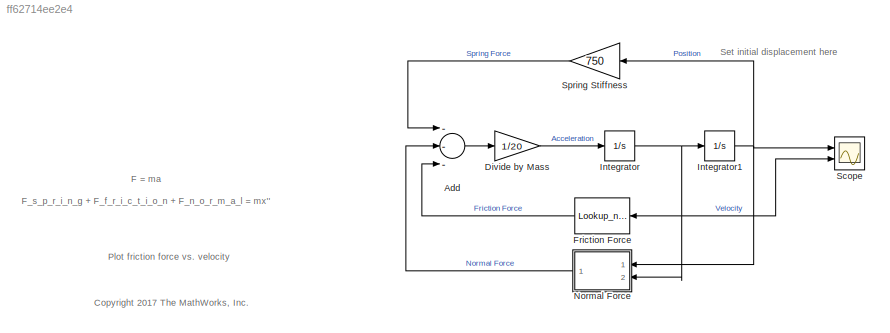
MODEL slx_ff62714ee2e4
KIND model
CONFIG AbsTol = auto
CONFIG EnableMultiTasking = off
CONFIG FixedStep = auto
CONFIG MaxStep = auto
CONFIG MinStep = auto
CONFIG PreLoadFcn = % Friction force law lookup table data\nfrictForce = [-35 -25 -30 30 25 35]; \nfrictSpeed = [-1 -0.02 -0.01 0.01 0.02 1];
CONFIG RelTol = 1e-3
CONFIG SampleTimeConstraint = Unconstrained
CONFIG Solver = ode15s
CONFIG SolverName = ode15s
CONFIG StartTime = 0.0
CONFIG StopTime = 5
BLOCK [Sum] Add
  InputSameDT = off
  Inputs = ---
  OutDataTypeStr = Inherit: Inherit via internal rule
  Ports = [3, 1]
  SaturateOnIntegerOverflow = off
BLOCK [Gain] Divide by Mass
  Gain = 1/20
  OutDataTypeStr = Inherit: Inherit via internal rule
  ParamDataTypeStr = Inherit: Inherit via internal rule
  SaturateOnIntegerOverflow = off
BLOCK [Lookup_n-D] Friction Force
  BreakpointsForDimension1 = frictSpeed
  InternalRulePriority = Speed
  NumberOfTableDimensions = 1
  Ports = [1, 1]
  RndMeth = Simplest
  Table = frictForce
BLOCK [Integrator] Integrator
  Ports = [1, 1]
BLOCK [Integrator] Integrator1
  InitialCondition = 1
  Ports = [1, 1]
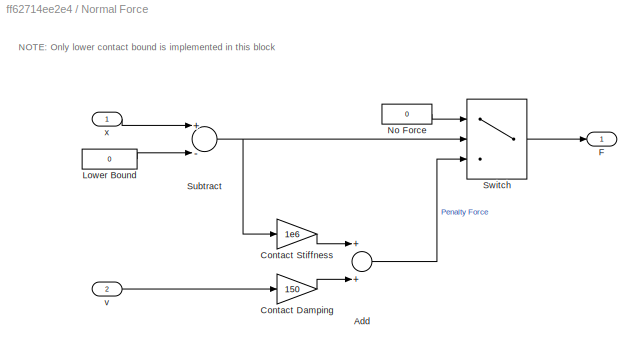
BLOCK [SubSystem] Normal Force
  Ports = [2, 1]
  RequestExecContextInheritance = off
  Variant = off
BLOCK [Sum] Normal Force/Add
  InputSameDT = off
  OutDataTypeStr = Inherit: Inherit via internal rule
  Ports = [2, 1]
  SaturateOnIntegerOverflow = off
BLOCK [Gain] Normal Force/Contact Damping
  Gain = 150
  OutDataTypeStr = Inherit: Inherit via internal rule
  ParamDataTypeStr = Inherit: Inherit via internal rule
  SaturateOnIntegerOverflow = off
BLOCK [Gain] Normal Force/Contact Stiffness
  Gain = 1e6
  OutDataTypeStr = Inherit: Inherit via internal rule
  ParamDataTypeStr = Inherit: Inherit via internal rule
  SaturateOnIntegerOverflow = off
BLOCK [Outport] Normal Force/F
  IconDisplay = Port number
BLOCK [Constant] Normal Force/Lower Bound
  Value = 0
BLOCK [Constant] Normal Force/No Force
  Value = 0
BLOCK [Sum] Normal Force/Subtract
  InputSameDT = off
  Inputs = +-
  OutDataTypeStr = Inherit: Inherit via internal rule
  Ports = [2, 1]
  SaturateOnIntegerOverflow = off
BLOCK [Switch] Normal Force/Switch
  Criteria = u2 > Threshold
  InputSameDT = off
  SaturateOnIntegerOverflow = off
BLOCK [Inport] Normal Force/v
  IconDisplay = Port number
  Port = 2
BLOCK [Inport] Normal Force/x
  IconDisplay = Port number
BLOCK [Scope] Scope
  NumInputPorts = 2
  Ports = [2]
  ScopeSpecificationString = Simulink.scopes.TimeScopeBlockCfg('CurrentConfiguration', extmgr.ConfigurationSet(extmgr.Configuration('Core','General UI',true),extmgr.Configuration('Core','Source UI',true),extmgr.Configuration('Sources','WiredSimulink',true),extmgr.Configuration('Visuals','Time Domain',true,'SerializedDisplays',{struct('MinYLimReal','-0.1517','MaxYLimReal','1.12797','YLabelReal','','MinYLimMag','0.00000','MaxYL...<+2019ch>
BLOCK [Gain] Spring Stiffness
  Gain = 750
  OutDataTypeStr = Inherit: Inherit via internal rule
  ParamDataTypeStr = Inherit: Inherit via internal rule
  SaturateOnIntegerOverflow = off
ANNOTATION (root): Plot friction force vs. velocity
ANNOTATION (root): <copyright redacted>
ANNOTATION (root): F = ma F_s_p_r_i_n_g + F_f_r_i_c_t_i_o_n + F_n_o_r_m_a_l = mx''
ANNOTATION (root): Set initial displacement here
ANNOTATION Normal Force: NOTE: Only lower contact bound is implemented in this block
LINE Add:1 -> Divide by Mass:1
LINE Divide by Mass:1 -> Integrator:1
LINE Friction Force:1 -> Add:3
NET Integrator1:1 -> Normal Force:1, Scope:1, Spring Stiffness:1
NET Integrator:1 -> Friction Force:1, Integrator1:1, Normal Force:2, Scope:2
LINE Normal Force/Add:1 -> Normal Force/Switch:3
LINE Normal Force/Contact Damping:1 -> Normal Force/Add:2
LINE Normal Force/Contact Stiffness:1 -> Normal Force/Add:1
LINE Normal Force/Lower Bound:1 -> Normal Force/Subtract:2
LINE Normal Force/No Force:1 -> Normal Force/Switch:1
NET Normal Force/Subtract:1 -> Normal Force/Contact Stiffness:1, Normal Force/Switch:2
LINE Normal Force/Switch:1 -> Normal Force/F:1
LINE Normal Force/v:1 -> Normal Force/Contact Damping:1
LINE Normal Force/x:1 -> Normal Force/Subtract:1
LINE Normal Force:1 -> Add:2
LINE Spring Stiffness:1 -> Add:1
note: NET lines group one-source signal fan-out (src -> all destinations, sorted); 1:1 wires keep LINE
